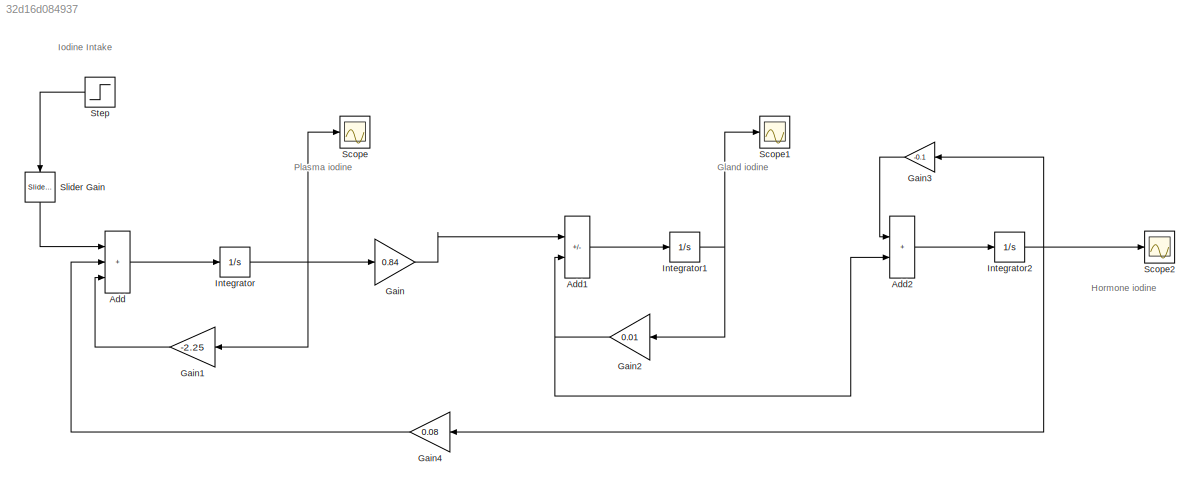
MODEL slx_32d16d084937
KIND model
CONFIG AbsTol = auto
CONFIG EnableMultiTasking = off
CONFIG FixedStep = auto
CONFIG MaxStep = auto
CONFIG MinStep = auto
CONFIG RelTol = 1e-3
CONFIG SampleTimeConstraint = Unconstrained
CONFIG SolverName = VariableStepAuto
CONFIG StartTime = 0.0
CONFIG StopTime = 300
BLOCK [Sum] Add
  IconShape = rectangular
  Inputs = +++
BLOCK [Sum] Add1
  IconShape = rectangular
  Inputs = +-
BLOCK [Sum] Add2
  IconShape = rectangular
BLOCK [Gain] Gain
  Gain = 0.84
BLOCK [Gain] Gain1
  Gain = -2.25
  NameLocation = top
BLOCK [Gain] Gain2
  Gain = 0.01
  NameLocation = top
BLOCK [Gain] Gain3
  Gain = -0.1
  NameLocation = top
BLOCK [Gain] Gain4
  Gain = 0.08
  NameLocation = top
BLOCK [Integrator] Integrator
  InitialCondition = 81.2
BLOCK [Integrator] Integrator1
  InitialCondition = 6821
BLOCK [Integrator] Integrator2
  InitialCondition = 682
BLOCK [Scope] Scope
  Floating = off
  NumInputPorts = 1
  ScopeSpecificationString = Simulink.scopes.TimeScopeBlockCfg('CurrentConfiguration', extmgr.ConfigurationSet(extmgr.Configuration('Core','General UI',true),extmgr.Configuration('Core','Source UI',true),extmgr.Configuration('Sources','WiredSimulink',true),extmgr.Configuration('Visuals','Time Domain',true,'SerializedDisplays',{struct('MinYLimReal','78.72549','MaxYLimReal','103.47063','YLabelReal','','MinYLimMag','78.72549','M...<+1369ch>
BLOCK [Scope] Scope1
  Floating = off
  NumInputPorts = 1
  ScopeSpecificationString = Simulink.scopes.TimeScopeBlockCfg('CurrentConfiguration', extmgr.ConfigurationSet(extmgr.Configuration('Core','General UI',true),extmgr.Configuration('Core','Source UI',true),extmgr.Configuration('Sources','WiredSimulink',true,'DataLoggingVariableName','ScopeData1'),extmgr.Configuration('Visuals','Time Domain',true,'SerializedDisplays',{struct('MinYLimReal','930.88223','MaxYLimReal','7475.45753','...<+1417ch>
BLOCK [Scope] Scope2
  Floating = off
  NumInputPorts = 1
  ScopeSpecificationString = Simulink.scopes.TimeScopeBlockCfg('CurrentConfiguration', extmgr.ConfigurationSet(extmgr.Configuration('Core','General UI',true),extmgr.Configuration('Core','Source UI',true),extmgr.Configuration('Sources','WiredSimulink',true,'DataLoggingVariableName','ScopeData2'),extmgr.Configuration('Visuals','Time Domain',true,'SerializedDisplays',{struct('MinYLimReal','663.3002','MaxYLimReal','850.2982','YLa...<+1402ch>
BLOCK [Reference] Slider Gain  REF=simulink/Math
Operations/Slider
Gain
  NameLocation = left
  SourceBlock = simulink/Math\nOperations/Slider\nGain
  SourceType = Slider Gain
BLOCK [Step] Step
  Before = 1
  NameLocation = top
  SampleTime = 0
ANNOTATION (root): Gland iodine
ANNOTATION (root): Hormone iodine
ANNOTATION (root): Iodine Intake
ANNOTATION (root): Plasma iodine
LINE Add1:1 -> Integrator1:1
LINE Add2:1 -> Integrator2:1
LINE Add:1 -> Integrator:1
LINE Gain1:1 -> Add:3
NET Gain2:1 -> Add1:2, Add2:2
LINE Gain3:1 -> Add2:1
LINE Gain4:1 -> Add:2
LINE Gain:1 -> Add1:1
NET Integrator1:1 -> Gain2:1, Scope1:1
NET Integrator2:1 -> Gain3:1, Gain4:1, Scope2:1
NET Integrator:1 -> Gain1:1, Gain:1, Scope:1
LINE Slider Gain:1 -> Add:1
LINE Step:1 -> Slider Gain:1
note: NET lines group one-source signal fan-out (src -> all destinations, sorted); 1:1 wires keep LINE
